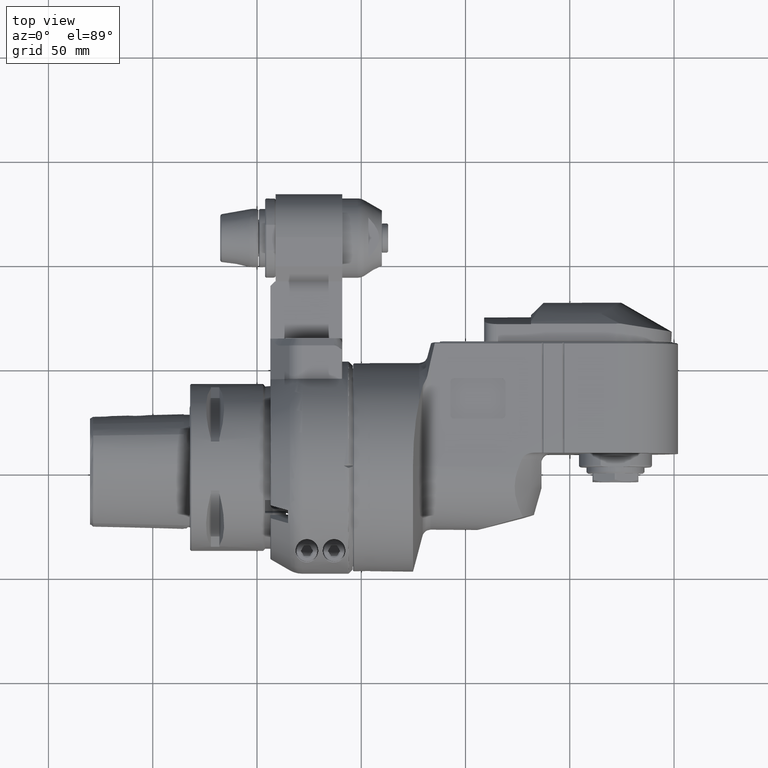
[diagram: clean part render]
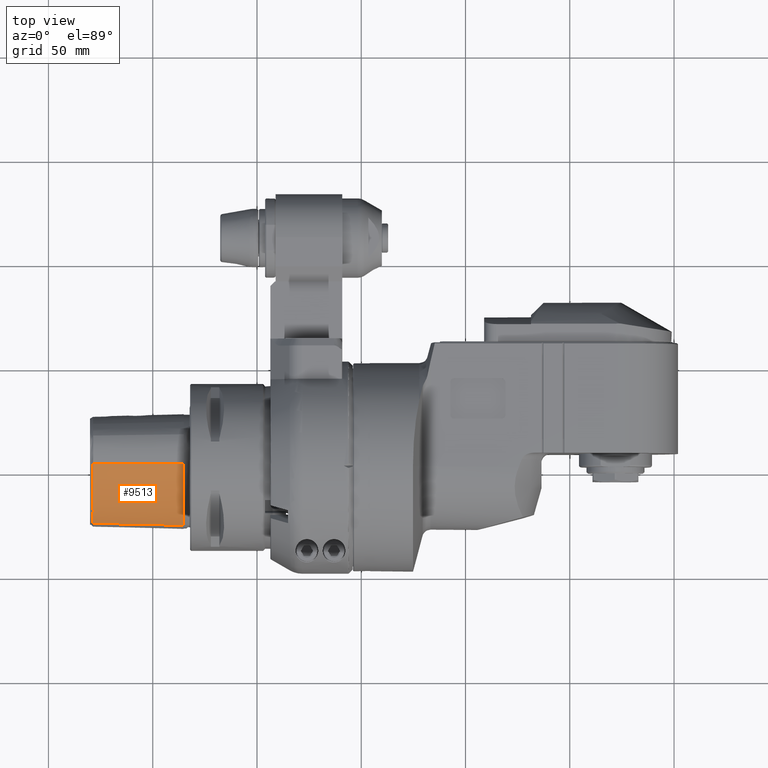
[diagram: same view with one face highlighted and labeled with its STEP entity id]
A machine part, top view. The second image highlights one B-rep face of the part: STEP entity #9513.
In plain terms, the highlighted face is a freeform B-spline surface patch.
Its self-contained STEP definition (entity closure, byte-faithful):
#34=B_SPLINE_SURFACE_WITH_KNOTS('',3,3,((#19590,#19591,#19592,#19593,#19594,
#19595,#19596,#19597,#19598,#19599,#19600),(#19601,#19602,#19603,#19604,
#19605,#19606,#19607,#19608,#19609,#19610,#19611),(#19612,#19613,#19614,
#19615,#19616,#19617,#19618,#19619,#19620,#19621,#19622),(#19623,#19624,
#19625,#19626,#19627,#19628,#19629,#19630,#19631,#19632,#19633),(#19634,
#19635,#19636,#19637,#19638,#19639,#19640,#19641,#19642,#19643,#19644),
(#19645,#19646,#19647,#19648,#19649,#19650,#19651,#19652,#19653,#19654,
#19655),(#19656,#19657,#19658,#19659,#19660,#19661,#19662,#19663,#19664,
#19665,#19666),(#19667,#19668,#19669,#19670,#19671,#19672,#19673,#19674,
#19675,#19676,#19677),(#19678,#19679,#19680,#19681,#19682,#19683,#19684,
#19685,#19686,#19687,#19688),(#19689,#19690,#19691,#19692,#19693,#19694,
#19695,#19696,#19697,#19698,#19699),(#19700,#19701,#19702,#19703,#19704,
#19705,#19706,#19707,#19708,#19709,#19710)),.UNSPECIFIED.,.F.,.F.,.F.,(4,
1,1,1,1,1,1,1,4),(4,1,1,1,1,1,1,1,4),(-0.01169880559212,0.125,0.25,0.375,
0.5,0.625,0.75,0.875,1.011595711378),(-0.01002806217666,0.0625,0.125,0.25,
0.5,0.75,0.875,0.9375,1.012849313526),.UNSPECIFIED.);
#174=B_SPLINE_CURVE_WITH_KNOTS('',3,(#18220,#18221,#18222,#18223,#18224,
#18225,#18226,#18227,#18228,#18229,#18230,#18231,#18232,#18233,#18234,#18235,
#18236,#18237,#18238,#18239,#18240,#18241,#18242,#18243,#18244,#18245,#18246,
#18247,#18248,#18249,#18250,#18251,#18252,#18253,#18254,#18255,#18256,#18257,
#18258,#18259,#18260,#18261,#18262,#18263,#18264,#18265,#18266,#18267,#18268,
#18269,#18270,#18271,#18272,#18273,#18274,#18275,#18276,#18277,#18278,#18279,
#18280,#18281,#18282,#18283,#18284,#18285,#18286,#18287,#18288,#18289,#18290,
#18291,#18292,#18293,#18294,#18295,#18296,#18297,#18298,#18299,#18300,#18301,
#18302,#18303,#18304,#18305,#18306,#18307,#18308,#18309,#18310,#18311,#18312,
#18313,#18314,#18315,#18316,#18317,#18318,#18319,#18320,#18321,#18322,#18323,
#18324,#18325,#18326,#18327,#18328,#18329,#18330,#18331,#18332,#18333,#18334,
#18335,#18336,#18337,#18338,#18339,#18340,#18341,#18342,#18343,#18344,#18345,
#18346,#18347,#18348,#18349,#18350,#18351,#18352,#18353,#18354,#18355,#18356,
#18357,#18358,#18359,#18360,#18361,#18362,#18363,#18364,#18365,#18366,#18367,
#18368,#18369,#18370,#18371,#18372,#18373,#18374,#18375,#18376,#18377,#18378,
#18379,#18380,#18381,#18382,#18383,#18384,#18385,#18386,#18387,#18388,#18389,
#18390,#18391,#18392,#18393,#18394,#18395,#18396,#18397,#18398,#18399,#18400,
#18401,#18402,#18403,#18404,#18405,#18406,#18407,#18408,#18409,#18410,#18411,
#18412,#18413,#18414,#18415,#18416,#18417,#18418,#18419,#18420,#18421,#18422,
#18423,#18424,#18425,#18426,#18427,#18428,#18429,#18430,#18431,#18432,#18433,
#18434,#18435,#18436,#18437,#18438,#18439,#18440,#18441,#18442,#18443,#18444,
#18445,#18446,#18447,#18448,#18449,#18450,#18451,#18452,#18453,#18454,#18455,
#18456,#18457,#18458,#18459,#18460,#18461,#18462,#18463,#18464,#18465,#18466,
#18467,#18468,#18469,#18470,#18471,#18472),.UNSPECIFIED.,.F.,.F.,(4,3,3,
3,3,3,3,3,3,3,3,3,3,3,3,3,3,3,3,3,3,3,3,3,3,3,3,3,3,3,3,3,3,3,3,3,3,3,3,
3,3,3,3,3,3,3,3,3,3,3,3,3,3,3,3,3,3,3,3,3,3,3,3,3,3,3,3,3,3,3,3,3,3,3,3,
3,3,3,3,3,3,3,3,3,4),(0.,0.0144408060381733,0.02777777777778,0.0477507877700687,
0.05555555555556,0.077640842792341,0.08333333333333,0.10002287098027,0.1111111111111,
0.124293039640173,0.134511926963042,0.1388888888889,0.155336029431985,0.1666666666667,
0.180838488948557,0.1944444444444,0.219291272415295,0.2222222222222,0.235388360028553,
0.248560839224546,0.25,0.263989060371511,0.2777777777778,0.283389073088004,
0.297053300081764,0.3055555555556,0.31984456048116,0.3333333333333,0.347684155058637,
0.3611111111111,0.374101709151367,0.386551396082153,0.3888888888889,0.397199657967372,
0.408644854303561,0.4166666666667,0.427488933618653,0.438594949079317,0.4444444444444,
0.456433920455357,0.468869088568605,0.4722222222222,0.480315228309233,0.490157614154616,
0.5,0.50934506412399,0.518805724245684,0.5277777777778,0.546159635532931,
0.5555555555556,0.560869919214028,0.575235926074502,0.5833333333333,0.598739980576151,
0.6111111111111,0.62749451424234,0.6388888888889,0.655925504090136,0.6666666666667,
0.671233505720559,0.685074412152307,0.6944444444444,0.708827728563799,0.7222222222222,
0.737881460193812,0.75,0.764515835672934,0.7777777777778,0.798274583775499,
0.8055555555556,0.820587460517287,0.8333333333333,0.838157787054226,0.857831425556216,
0.8611111111111,0.875526954039761,0.8888888888889,0.906154799405124,0.9166666666667,
0.936444103339296,0.9444444444444,0.963056145439274,0.9722222222222,0.98822786148394,
1.),.UNSPECIFIED.);
#182=B_SPLINE_CURVE_WITH_KNOTS('',3,(#19389,#19390,#19391,#19392,#19393,
#19394,#19395,#19396,#19397,#19398,#19399,#19400,#19401,#19402,#19403,#19404,
#19405,#19406,#19407,#19408,#19409,#19410,#19411,#19412),.UNSPECIFIED.,
 .F.,.F.,(4,2,2,2,2,2,2,2,2,2,2,4),(3.12012815852846E-6,0.236818849493963,
0.484703164790632,1.01425601501948,1.38642070884011,1.82715244978627,1.94726393507569,
2.16465498743788,2.54482898410662,3.19685746395687,3.37703478856387,3.92666945684222),
 .UNSPECIFIED.);
#194=B_SPLINE_CURVE_WITH_KNOTS('',3,(#19711,#19712,#19713,#19714,#19715,
#19716,#19717,#19718,#19719,#19720,#19721,#19722,#19723,#19724,#19725,#19726,
#19727,#19728,#19729),.UNSPECIFIED.,.F.,.F.,(4,3,3,3,3,3,4),(0.,0.25,0.5,
0.75,0.875,0.9375,0.999998897362736),.UNSPECIFIED.);
#195=B_SPLINE_CURVE_WITH_KNOTS('',3,(#19730,#19731,#19732,#19733,#19734,
#19735,#19736,#19737,#19738,#19739,#19740,#19741,#19742,#19743,#19744,#19745,
#19746,#19747,#19748,#19749,#19750,#19751,#19752,#19753,#19754),
 .UNSPECIFIED.,.F.,.F.,(4,3,3,3,3,3,3,3,4),(0.,0.0625,0.125,0.25,0.5,0.75,
0.875,0.9375,1.),.UNSPECIFIED.);
#2352=FACE_OUTER_BOUND('',#2985,.T.);
#2985=EDGE_LOOP('',(#7959,#7960,#7961,#7962));
#4395=VERTEX_POINT('',#18212);
#4396=VERTEX_POINT('',#18219);
#4404=VERTEX_POINT('',#19387);
#4405=VERTEX_POINT('',#19388);
#5640=EDGE_CURVE('',#4395,#4396,#174,.T.);
#5651=EDGE_CURVE('',#4404,#4405,#182,.T.);
#5663=EDGE_CURVE('',#4395,#4404,#194,.T.);
#5664=EDGE_CURVE('',#4405,#4396,#195,.T.);
#7959=ORIENTED_EDGE('',*,*,#5663,.T.);
#7960=ORIENTED_EDGE('',*,*,#5651,.T.);
#7961=ORIENTED_EDGE('',*,*,#5664,.T.);
#7962=ORIENTED_EDGE('',*,*,#5640,.F.);
#9513=ADVANCED_FACE('',(#2352),#34,.T.);
#18212=CARTESIAN_POINT('',(-207.,1.442435783776,27.15081595652));
#18219=CARTESIAN_POINT('',(-207.,-27.88731086809,6.491330225295));
#18220=CARTESIAN_POINT('Ctrl Pts',(-207.,1.44243578377642,27.1508159565171));
#18221=CARTESIAN_POINT('Ctrl Pts',(-207.,1.31232596074685,27.1317597417232));
#18222=CARTESIAN_POINT('Ctrl Pts',(-206.99999997081,1.18220820942862,27.1118138497834));
#18223=CARTESIAN_POINT('Ctrl Pts',(-206.999999961588,1.05205213041782,27.091005920092));
#18224=CARTESIAN_POINT('Ctrl Pts',(-206.999999953071,0.931844993578209,
27.0717885184096));
#18225=CARTESIAN_POINT('Ctrl Pts',(-206.999999961027,0.811604382144825,
27.0518357060803));
#18226=CARTESIAN_POINT('Ctrl Pts',(-207.,0.691268861610757,27.0311570467657));
#18227=CARTESIAN_POINT('Ctrl Pts',(-207.000000058365,0.511058345986985,
27.0001893670568));
#18228=CARTESIAN_POINT('Ctrl Pts',(-207.000000032332,0.330654368639092,
26.9675949096009));
#18229=CARTESIAN_POINT('Ctrl Pts',(-207.000000014578,0.150448291673767,
26.9335055269208));
#18230=CARTESIAN_POINT('Ctrl Pts',(-207.000000007641,0.080029932858959,
26.9201845644884));
#18231=CARTESIAN_POINT('Ctrl Pts',(-207.000000001508,0.00964122230135192,
26.9066353680624));
#18232=CARTESIAN_POINT('Ctrl Pts',(-207.,-0.0606966233513879,26.892865921172));
#18233=CARTESIAN_POINT('Ctrl Pts',(-206.999999995732,-0.259732849354795,
26.8539022776629));
#18234=CARTESIAN_POINT('Ctrl Pts',(-207.000000015415,-0.458354771750283,
26.8131744785839));
#18235=CARTESIAN_POINT('Ctrl Pts',(-207.000000010607,-0.655983413508422,
26.7708986553393));
#18236=CARTESIAN_POINT('Ctrl Pts',(-207.000000009367,-0.706922265322997,
26.7600020470519));
#18237=CARTESIAN_POINT('Ctrl Pts',(-207.000000006268,-0.757795388193016,
26.7490026713086));
#18238=CARTESIAN_POINT('Ctrl Pts',(-207.,-0.808593401874994,26.7379043799301));
#18239=CARTESIAN_POINT('Ctrl Pts',(-206.999999981625,-0.95752564087136,
26.7053658363095));
#18240=CARTESIAN_POINT('Ctrl Pts',(-207.000000050819,-1.10581663066059,
26.6719771623227));
#18241=CARTESIAN_POINT('Ctrl Pts',(-207.000000071455,-1.25361202770971,
26.63774696714));
#18242=CARTESIAN_POINT('Ctrl Pts',(-207.000000085166,-1.3518047330668,26.6150050175461));
#18243=CARTESIAN_POINT('Ctrl Pts',(-207.000000076823,-1.44977972235291,
26.5918911516095));
#18244=CARTESIAN_POINT('Ctrl Pts',(-207.,-1.54759103252637,26.5684022599089));
#18245=CARTESIAN_POINT('Ctrl Pts',(-206.999999908672,-1.66387113512413,
26.5404781810677));
#18246=CARTESIAN_POINT('Ctrl Pts',(-206.99999987824,-1.77992659071089,26.5120239750093));
#18247=CARTESIAN_POINT('Ctrl Pts',(-206.999999886465,-1.89627107187267,
26.482919754967));
#18248=CARTESIAN_POINT('Ctrl Pts',(-206.999999892842,-1.98646357602771,
26.4603575976487));
#18249=CARTESIAN_POINT('Ctrl Pts',(-206.999999922002,-2.07683067668781,
26.4374041850312));
#18250=CARTESIAN_POINT('Ctrl Pts',(-206.999999955876,-2.1676285840556,26.4139903636366));
#18251=CARTESIAN_POINT('Ctrl Pts',(-206.999999970385,-2.20651921577898,
26.4039617370802));
#18252=CARTESIAN_POINT('Ctrl Pts',(-206.99999998568,-2.24548906102013,26.3938484978124));
#18253=CARTESIAN_POINT('Ctrl Pts',(-207.,-2.28455829951459,26.3836445884064));
#18254=CARTESIAN_POINT('Ctrl Pts',(-207.000000053811,-2.43136726594253,
26.3453017526834));
#18255=CARTESIAN_POINT('Ctrl Pts',(-206.999999919891,-2.57956819806081,
26.3056835221054));
#18256=CARTESIAN_POINT('Ctrl Pts',(-206.999999876152,-2.72961056530397,
26.264610453184));
#18257=CARTESIAN_POINT('Ctrl Pts',(-206.99999984602,-2.83297659592895,26.2363147112679));
#18258=CARTESIAN_POINT('Ctrl Pts',(-206.999999858339,-2.9372174039327,26.2073277704654));
#18259=CARTESIAN_POINT('Ctrl Pts',(-207.,-3.04248983740638,26.1775805409241));
#18260=CARTESIAN_POINT('Ctrl Pts',(-207.000000177183,-3.17415959149546,
26.1403741206933));
#18261=CARTESIAN_POINT('Ctrl Pts',(-207.000000235546,-3.30742597603464,
26.1019801091143));
#18262=CARTESIAN_POINT('Ctrl Pts',(-207.000000216888,-3.44164021108164,
26.0625405741616));
#18263=CARTESIAN_POINT('Ctrl Pts',(-207.000000198975,-3.57049540504607,
26.0246758206619));
#18264=CARTESIAN_POINT('Ctrl Pts',(-207.000000110297,-3.70022379614517,
25.9858474899358));
#18265=CARTESIAN_POINT('Ctrl Pts',(-207.,-3.83022071420184,25.9462146634696));
#18266=CARTESIAN_POINT('Ctrl Pts',(-206.999999798579,-4.06761757035702,
25.8738382675959));
#18267=CARTESIAN_POINT('Ctrl Pts',(-207.000000177245,-4.30594544030915,
25.7987757095801));
#18268=CARTESIAN_POINT('Ctrl Pts',(-207.0000000629,-4.54510907803716,25.7209730847363));
#18269=CARTESIAN_POINT('Ctrl Pts',(-207.000000049412,-4.57332099380519,
25.7117954308108));
#18270=CARTESIAN_POINT('Ctrl Pts',(-207.000000029039,-4.60154459260676,
25.7025796239686));
#18271=CARTESIAN_POINT('Ctrl Pts',(-207.,-4.62977976012256,25.6933255549431));
#18272=CARTESIAN_POINT('Ctrl Pts',(-206.999999869556,-4.75661513124444,
25.651755294077));
#18273=CARTESIAN_POINT('Ctrl Pts',(-206.999999843102,-4.88369437933492,
25.6094121830546));
#18274=CARTESIAN_POINT('Ctrl Pts',(-206.999999862214,-5.01171080576746,
25.566039297454));
#18275=CARTESIAN_POINT('Ctrl Pts',(-206.999999881334,-5.13978889052776,
25.5226455215688));
#18276=CARTESIAN_POINT('Ctrl Pts',(-206.999999945918,-5.2688053146793,25.4782211386172));
#18277=CARTESIAN_POINT('Ctrl Pts',(-206.999999987365,-5.39948285163743,
25.4324653624121));
#18278=CARTESIAN_POINT('Ctrl Pts',(-206.999999991893,-5.41376004142265,
25.4274663096609));
#18279=CARTESIAN_POINT('Ctrl Pts',(-206.999999996137,-5.42805708517252,
25.4224513202025));
#18280=CARTESIAN_POINT('Ctrl Pts',(-207.,-5.44237494412103,25.4174199688456));
#18281=CARTESIAN_POINT('Ctrl Pts',(-207.000000037551,-5.5815486880402,25.368513773594));
#18282=CARTESIAN_POINT('Ctrl Pts',(-207.000000022037,-5.72268185857727,
25.3180673923543));
#18283=CARTESIAN_POINT('Ctrl Pts',(-207.000000005648,-5.8664275096938,25.2657496191445));
#18284=CARTESIAN_POINT('Ctrl Pts',(-206.999999989494,-6.00811452147231,
25.2141811098266));
#18285=CARTESIAN_POINT('Ctrl Pts',(-206.99999997234,-6.15233997503863,25.1607946341049));
#18286=CARTESIAN_POINT('Ctrl Pts',(-207.,-6.29974662883576,25.1052266187522));
#18287=CARTESIAN_POINT('Ctrl Pts',(-207.000000011256,-6.35973351817237,
25.0826133085539));
#18288=CARTESIAN_POINT('Ctrl Pts',(-207.000000021637,-6.42024590757823,
25.0596387378771));
#18289=CARTESIAN_POINT('Ctrl Pts',(-207.000000030318,-6.48133101458571,
25.0362747992007));
#18290=CARTESIAN_POINT('Ctrl Pts',(-207.000000051456,-6.63008111985472,
24.9793805985047));
#18291=CARTESIAN_POINT('Ctrl Pts',(-207.000000062516,-6.78222699468993,
24.9201809329965));
#18292=CARTESIAN_POINT('Ctrl Pts',(-207.000000050904,-6.93843690633031,
24.8582622309199));
#18293=CARTESIAN_POINT('Ctrl Pts',(-207.000000043679,-7.03563498251264,
24.8197347222724));
#18294=CARTESIAN_POINT('Ctrl Pts',(-207.000000027656,-7.13440668356876,
24.7801535180497));
#18295=CARTESIAN_POINT('Ctrl Pts',(-207.,-7.23491367987952,24.7394087707546));
#18296=CARTESIAN_POINT('Ctrl Pts',(-206.999999953521,-7.40382708994549,
24.6709326003333));
#18297=CARTESIAN_POINT('Ctrl Pts',(-206.999999870147,-7.57763700236869,
24.5991743825593));
#18298=CARTESIAN_POINT('Ctrl Pts',(-206.999999842622,-7.75680504803648,
24.5236918112675));
#18299=CARTESIAN_POINT('Ctrl Pts',(-206.99999981664,-7.92593908381888,24.4524365164619));
#18300=CARTESIAN_POINT('Ctrl Pts',(-206.999999840289,-8.09984827526845,
24.3778621655837));
#18301=CARTESIAN_POINT('Ctrl Pts',(-207.,-8.27890452147979,24.2995573102945));
#18302=CARTESIAN_POINT('Ctrl Pts',(-207.000000169918,-8.46940400548433,
24.216248099679));
#18303=CARTESIAN_POINT('Ctrl Pts',(-207.00000037475,-8.66572192432255,24.1287183360793));
#18304=CARTESIAN_POINT('Ctrl Pts',(-207.000000422137,-8.86787997630498,
24.0366094986343));
#18305=CARTESIAN_POINT('Ctrl Pts',(-207.000000466473,-9.05702365961247,
23.9504303699343));
#18306=CARTESIAN_POINT('Ctrl Pts',(-207.000000372987,-9.25127974878145,
23.8602425869304));
#18307=CARTESIAN_POINT('Ctrl Pts',(-207.,-9.45062839599227,23.7657352703046));
#18308=CARTESIAN_POINT('Ctrl Pts',(-206.999999639134,-9.64349848029643,
23.6742993143549));
#18309=CARTESIAN_POINT('Ctrl Pts',(-206.999999216362,-9.84113479355126,
23.5788218474992));
#18310=CARTESIAN_POINT('Ctrl Pts',(-206.999999052471,-10.0437043209538,
23.4788918263243));
#18311=CARTESIAN_POINT('Ctrl Pts',(-206.999998895403,-10.2378391244525,
23.3831227574364));
#18312=CARTESIAN_POINT('Ctrl Pts',(-206.999998975989,-10.4365051733918,
23.2832641132417));
#18313=CARTESIAN_POINT('Ctrl Pts',(-206.99999959331,-10.6398111514066,23.1789244559675));
#18314=CARTESIAN_POINT('Ctrl Pts',(-206.999999709215,-10.6779828953083,
23.1593341482198));
#18315=CARTESIAN_POINT('Ctrl Pts',(-206.999999844094,-10.7163180855074,
23.1395857908468));
#18316=CARTESIAN_POINT('Ctrl Pts',(-207.,-10.7548172680531,23.1196766740369));
#18317=CARTESIAN_POINT('Ctrl Pts',(-207.000000554312,-10.8916980383058,
23.0488913985119));
#18318=CARTESIAN_POINT('Ctrl Pts',(-207.000000807117,-11.0306341491617,
22.9760833602979));
#18319=CARTESIAN_POINT('Ctrl Pts',(-207.000000878638,-11.1715148780742,
22.9011980777768));
#18320=CARTESIAN_POINT('Ctrl Pts',(-207.000000977134,-11.3655291247901,
22.7980696244348));
#18321=CARTESIAN_POINT('Ctrl Pts',(-207.000000731267,-11.563233307553,22.690999133608));
#18322=CARTESIAN_POINT('Ctrl Pts',(-207.000000466725,-11.7642826320581,
22.5799710746494));
#18323=CARTESIAN_POINT('Ctrl Pts',(-207.00000028131,-11.9051958946655,22.5021527279958));
#18324=CARTESIAN_POINT('Ctrl Pts',(-207.000000087004,-12.0477516133471,
22.4223908827477));
#18325=CARTESIAN_POINT('Ctrl Pts',(-207.,-12.1918190901198,22.3406897123314));
#18326=CARTESIAN_POINT('Ctrl Pts',(-206.999999882623,-12.386181239488,22.2304662570191));
#18327=CARTESIAN_POINT('Ctrl Pts',(-206.999999921605,-12.5833039162836,
22.1167057076785));
#18328=CARTESIAN_POINT('Ctrl Pts',(-206.999999986079,-12.7825630233057,
21.9996083447305));
#18329=CARTESIAN_POINT('Ctrl Pts',(-207.000000052243,-12.9870464954923,
21.8794408115254));
#18330=CARTESIAN_POINT('Ctrl Pts',(-207.000000145379,-13.1937795739314,
21.7557591189198));
#18331=CARTESIAN_POINT('Ctrl Pts',(-207.000000130999,-13.4020629807558,
21.6288292620173));
#18332=CARTESIAN_POINT('Ctrl Pts',(-207.000000123425,-13.5117650451153,
21.5619757975798));
#18333=CARTESIAN_POINT('Ctrl Pts',(-207.000000086128,-13.6218968032518,
21.494222091006));
#18334=CARTESIAN_POINT('Ctrl Pts',(-207.,-13.732353960873,21.425612357907));
#18335=CARTESIAN_POINT('Ctrl Pts',(-206.999999823467,-13.958753566118,21.2849857400933));
#18336=CARTESIAN_POINT('Ctrl Pts',(-206.999999585276,-14.1865281612634,
21.1407563460542));
#18337=CARTESIAN_POINT('Ctrl Pts',(-206.999999462766,-14.4149682975843,
20.9932148800072));
#18338=CARTESIAN_POINT('Ctrl Pts',(-206.999999335703,-14.6519003783832,
20.84018876508));
#18339=CARTESIAN_POINT('Ctrl Pts',(-206.99999933324,-14.8895479832334,20.6835997349715));
#18340=CARTESIAN_POINT('Ctrl Pts',(-206.999999659856,-15.1270955147965,
20.5238227818799));
#18341=CARTESIAN_POINT('Ctrl Pts',(-206.999999747928,-15.1911500265779,
20.480739047619));
#18342=CARTESIAN_POINT('Ctrl Pts',(-206.999999859956,-15.2551971523813,
20.437423792733));
#18343=CARTESIAN_POINT('Ctrl Pts',(-207.,-15.31922068506,20.3938849655824));
#18344=CARTESIAN_POINT('Ctrl Pts',(-207.000000338007,-15.4737456438629,
20.2888011754463));
#18345=CARTESIAN_POINT('Ctrl Pts',(-207.000000451312,-15.6281923430042,
20.182372721187));
#18346=CARTESIAN_POINT('Ctrl Pts',(-207.000000453196,-15.7820722881015,
20.0748995631491));
#18347=CARTESIAN_POINT('Ctrl Pts',(-207.000000455488,-15.9692148377583,
19.9441950661978));
#18348=CARTESIAN_POINT('Ctrl Pts',(-207.00000029362,-16.155517133822,19.8119451821615));
#18349=CARTESIAN_POINT('Ctrl Pts',(-207.00000015776,-16.3403101226649,19.6786070364184));
#18350=CARTESIAN_POINT('Ctrl Pts',(-207.000000021899,-16.5251031115077,
19.5452688906753));
#18351=CARTESIAN_POINT('Ctrl Pts',(-206.999999912344,-16.7083867204022,
19.4108425900418));
#18352=CARTESIAN_POINT('Ctrl Pts',(-207.,-16.8895370840713,19.2758114398523));
#18353=CARTESIAN_POINT('Ctrl Pts',(-207.000000083227,-17.0615341781871,
19.1476032211257));
#18354=CARTESIAN_POINT('Ctrl Pts',(-207.000000281757,-17.231587725799,19.0188645058368));
#18355=CARTESIAN_POINT('Ctrl Pts',(-207.000000459875,-17.3990755475481,
18.8901309711484));
#18356=CARTESIAN_POINT('Ctrl Pts',(-207.000000640195,-17.5686351498223,
18.7598050363241));
#18357=CARTESIAN_POINT('Ctrl Pts',(-207.000000799882,-17.7355651062631,
18.629484527297));
#18358=CARTESIAN_POINT('Ctrl Pts',(-207.000000769618,-17.8992683614307,
18.4997489859033));
#18359=CARTESIAN_POINT('Ctrl Pts',(-207.000000740917,-18.0545169751482,
18.376713784614));
#18360=CARTESIAN_POINT('Ctrl Pts',(-207.000000541283,-18.2068640294276,
18.2542050065149));
#18361=CARTESIAN_POINT('Ctrl Pts',(-207.,-18.3558398364895,18.1327346166268));
#18362=CARTESIAN_POINT('Ctrl Pts',(-206.999998891024,-18.6610600499628,
17.8838672396777));
#18363=CARTESIAN_POINT('Ctrl Pts',(-206.999999178946,-18.9520985282474,
17.6394022346501));
#18364=CARTESIAN_POINT('Ctrl Pts',(-206.999999552515,-19.2294384681106,
17.4002448772063));
#18365=CARTESIAN_POINT('Ctrl Pts',(-206.999999743466,-19.3712012827705,
17.2779991589928));
#18366=CARTESIAN_POINT('Ctrl Pts',(-206.999999954843,-19.5093853757935,
17.1571394273772));
#18367=CARTESIAN_POINT('Ctrl Pts',(-207.,-19.6440571760725,17.0377817151861));
#18368=CARTESIAN_POINT('Ctrl Pts',(-207.000000025541,-19.7202279948418,
16.9702725956437));
#18369=CARTESIAN_POINT('Ctrl Pts',(-207.000000040048,-19.7952744732661,
16.9032446840513));
#18370=CARTESIAN_POINT('Ctrl Pts',(-207.000000047131,-19.869229952833,16.836699176276));
#18371=CARTESIAN_POINT('Ctrl Pts',(-207.00000006628,-20.0691494530996,16.656810617141));
#18372=CARTESIAN_POINT('Ctrl Pts',(-207.000000031418,-20.2610994049474,
16.4804496927606));
#18373=CARTESIAN_POINT('Ctrl Pts',(-207.000000010456,-20.4457107453974,
16.3076130260372));
#18374=CARTESIAN_POINT('Ctrl Pts',(-206.999999998642,-20.5497670237171,
16.210193548704));
#18375=CARTESIAN_POINT('Ctrl Pts',(-206.999999991168,-20.651491067033,16.1138931007614));
#18376=CARTESIAN_POINT('Ctrl Pts',(-207.,-20.7509902476288,16.0187064930562));
#18377=CARTESIAN_POINT('Ctrl Pts',(-207.000000016804,-20.9403037806398,
15.8375983382744));
#18378=CARTESIAN_POINT('Ctrl Pts',(-207.000000001618,-21.1215654684368,
15.6605242165428));
#18379=CARTESIAN_POINT('Ctrl Pts',(-206.999999992126,-21.295405693352,15.4874916692313));
#18380=CARTESIAN_POINT('Ctrl Pts',(-206.999999984504,-21.4349947993237,
15.3485511070282));
#18381=CARTESIAN_POINT('Ctrl Pts',(-206.999999980423,-21.5697979519487,
15.2122156751693));
#18382=CARTESIAN_POINT('Ctrl Pts',(-207.,-21.7001224118322,15.0784743435175));
#18383=CARTESIAN_POINT('Ctrl Pts',(-207.000000025926,-21.872714412062,14.9013572930127));
#18384=CARTESIAN_POINT('Ctrl Pts',(-207.000000029666,-22.0374527309551,
14.7287907118751));
#18385=CARTESIAN_POINT('Ctrl Pts',(-207.000000023027,-22.1949556418522,
14.5607743157981));
#18386=CARTESIAN_POINT('Ctrl Pts',(-207.000000018409,-22.3044962031331,
14.4439218066869));
#18387=CARTESIAN_POINT('Ctrl Pts',(-207.00000000881,-22.4105361094161,14.329269495492));
#18388=CARTESIAN_POINT('Ctrl Pts',(-207.,-22.5132713368042,14.2168086480523));
#18389=CARTESIAN_POINT('Ctrl Pts',(-206.999999986827,-22.6668787607228,
14.048659693637));
#18390=CARTESIAN_POINT('Ctrl Pts',(-206.999999940653,-22.8131000830974,
13.8854113987139));
#18391=CARTESIAN_POINT('Ctrl Pts',(-206.999999936262,-22.9525378958531,
13.727023804329));
#18392=CARTESIAN_POINT('Ctrl Pts',(-206.999999933494,-23.0404499721922,
13.6271643615169));
#18393=CARTESIAN_POINT('Ctrl Pts',(-206.999999947555,-23.1256647033161,
13.5292364337943));
#18394=CARTESIAN_POINT('Ctrl Pts',(-207.,-23.2083241551263,13.4332243508778));
#18395=CARTESIAN_POINT('Ctrl Pts',(-207.000000022298,-23.2434686201696,
13.3924027240959));
#18396=CARTESIAN_POINT('Ctrl Pts',(-207.000000041104,-23.2781498090828,
13.3519288770914));
#18397=CARTESIAN_POINT('Ctrl Pts',(-207.000000056058,-23.3123848268519,
13.3117936752916));
#18398=CARTESIAN_POINT('Ctrl Pts',(-207.000000101378,-23.416142299371,13.1901542730311));
#18399=CARTESIAN_POINT('Ctrl Pts',(-207.000000109694,-23.515803293855,13.0716296080607));
#18400=CARTESIAN_POINT('Ctrl Pts',(-207.000000085487,-23.6118009198616,
12.9560583205747));
#18401=CARTESIAN_POINT('Ctrl Pts',(-207.000000069099,-23.6767894999146,
12.8778187413157));
#18402=CARTESIAN_POINT('Ctrl Pts',(-207.000000038259,-23.740098622382,12.8009315499002));
#18403=CARTESIAN_POINT('Ctrl Pts',(-207.,-23.8018562156318,12.7253349831512));
#18404=CARTESIAN_POINT('Ctrl Pts',(-206.999999941272,-23.8966559967374,
12.6092919574595));
#18405=CARTESIAN_POINT('Ctrl Pts',(-206.999999915148,-23.9878010783376,
12.4962933804489));
#18406=CARTESIAN_POINT('Ctrl Pts',(-206.999999913834,-24.0759096170218,
12.3858531122605));
#18407=CARTESIAN_POINT('Ctrl Pts',(-206.99999991261,-24.1579610631908,12.2830051493335));
#18408=CARTESIAN_POINT('Ctrl Pts',(-206.999999933345,-24.2373786061174,
12.1823748311305));
#18409=CARTESIAN_POINT('Ctrl Pts',(-207.,-24.3146277926172,12.0835470595536));
#18410=CARTESIAN_POINT('Ctrl Pts',(-207.000000077925,-24.4049382907489,
11.9680094638225));
#18411=CARTESIAN_POINT('Ctrl Pts',(-207.000000096719,-24.492283749088,11.8549378764486));
#18412=CARTESIAN_POINT('Ctrl Pts',(-207.000000078187,-24.5772903199237,
11.7437329164348));
#18413=CARTESIAN_POINT('Ctrl Pts',(-207.000000063844,-24.6430761208883,
11.6576724237712));
#18414=CARTESIAN_POINT('Ctrl Pts',(-207.000000028084,-24.7074601042125,
11.5727292861713));
#18415=CARTESIAN_POINT('Ctrl Pts',(-207.,-24.7707115653479,11.4886214441959));
#18416=CARTESIAN_POINT('Ctrl Pts',(-206.99999996636,-24.8464754635237,11.3878753450416));
#18417=CARTESIAN_POINT('Ctrl Pts',(-206.999999943133,-24.9206124771269,
11.2883321971063));
#18418=CARTESIAN_POINT('Ctrl Pts',(-206.999999936545,-24.9936762076348,
11.1893354761035));
#18419=CARTESIAN_POINT('Ctrl Pts',(-206.999999930527,-25.0604286141647,
11.0988901988152));
#18420=CARTESIAN_POINT('Ctrl Pts',(-206.999999938843,-25.1262846547101,
11.0089006696891));
#18421=CARTESIAN_POINT('Ctrl Pts',(-207.,-25.191629696727,10.9188758724672));
#18422=CARTESIAN_POINT('Ctrl Pts',(-207.00000009452,-25.2926227970242,10.7797393275291));
#18423=CARTESIAN_POINT('Ctrl Pts',(-206.999999919536,-25.3924018616887,
10.6405041518944));
#18424=CARTESIAN_POINT('Ctrl Pts',(-206.99999991639,-25.4910783143415,10.5010855818834));
#18425=CARTESIAN_POINT('Ctrl Pts',(-206.999999915272,-25.5261306277218,
10.4515606620502));
#18426=CARTESIAN_POINT('Ctrl Pts',(-206.999999936171,-25.5610434499428,
10.4020128960555));
#18427=CARTESIAN_POINT('Ctrl Pts',(-207.,-25.5958205583783,10.3524395567561));
#18428=CARTESIAN_POINT('Ctrl Pts',(-207.000000131778,-25.6676195166264,
10.2500930915468));
#18429=CARTESIAN_POINT('Ctrl Pts',(-207.000000273882,-25.7388460384584,
10.1476253894815));
#18430=CARTESIAN_POINT('Ctrl Pts',(-207.000000297831,-25.809071818626,10.0456897878783));
#18431=CARTESIAN_POINT('Ctrl Pts',(-207.000000318138,-25.8686177553986,
9.95925641720636));
#18432=CARTESIAN_POINT('Ctrl Pts',(-207.000000252878,-25.9274448633403,
9.87320553996994));
#18433=CARTESIAN_POINT('Ctrl Pts',(-207.,-25.9853177333562,9.78792096302552));
#18434=CARTESIAN_POINT('Ctrl Pts',(-206.999999904283,-26.007223254235,9.75563980813589));
#18435=CARTESIAN_POINT('Ctrl Pts',(-206.999999839829,-26.0289922282898,
9.7234684405902));
#18436=CARTESIAN_POINT('Ctrl Pts',(-206.999999798873,-26.0506285935723,
9.69140350934707));
#18437=CARTESIAN_POINT('Ctrl Pts',(-206.999999631855,-26.1388595216082,
9.56064593504757));
#18438=CARTESIAN_POINT('Ctrl Pts',(-206.999999852462,-26.224888520603,9.43165586766301));
#18439=CARTESIAN_POINT('Ctrl Pts',(-206.999999958479,-26.3089036841511,
9.30398990494044));
#18440=CARTESIAN_POINT('Ctrl Pts',(-206.999999976153,-26.3229093963254,
9.28270740481982));
#18441=CARTESIAN_POINT('Ctrl Pts',(-206.999999990732,-26.33685904728,9.2614617697762));
#18442=CARTESIAN_POINT('Ctrl Pts',(-207.,-26.3507533909365,9.24025102565381));
#18443=CARTESIAN_POINT('Ctrl Pts',(-207.000000040736,-26.4118259152374,
9.14701929640674));
#18444=CARTESIAN_POINT('Ctrl Pts',(-207.000000036507,-26.4718263244014,
9.0544704794082));
#18445=CARTESIAN_POINT('Ctrl Pts',(-207.000000020023,-26.5310062358549,
8.96212968414345));
#18446=CARTESIAN_POINT('Ctrl Pts',(-207.000000004745,-26.5858596443675,
8.87653970537142));
#18447=CARTESIAN_POINT('Ctrl Pts',(-206.999999979205,-26.6400079236993,
8.79112874538106));
#18448=CARTESIAN_POINT('Ctrl Pts',(-207.,-26.6936161012968,8.70553738096042));
#18449=CARTESIAN_POINT('Ctrl Pts',(-207.000000026871,-26.762887057022,8.59493866485131));
#18450=CARTESIAN_POINT('Ctrl Pts',(-207.000000015066,-26.8312613768112,
8.48402987513415));
#18451=CARTESIAN_POINT('Ctrl Pts',(-207.000000003376,-26.8987141972399,
8.3725692429531));
#18452=CARTESIAN_POINT('Ctrl Pts',(-206.999999996259,-26.9397809625344,
8.30470955091558));
#18453=CARTESIAN_POINT('Ctrl Pts',(-206.999999989883,-26.980505267152,8.23664561355496));
#18454=CARTESIAN_POINT('Ctrl Pts',(-207.,-27.0208723594959,8.168325623888));
#18455=CARTESIAN_POINT('Ctrl Pts',(-207.000000019035,-27.0968205799808,
8.03978573316375));
#18456=CARTESIAN_POINT('Ctrl Pts',(-207.000000017937,-27.1715096524152,
7.91033431919258));
#18457=CARTESIAN_POINT('Ctrl Pts',(-207.000000009774,-27.2446128754707,
7.77993608477072));
#18458=CARTESIAN_POINT('Ctrl Pts',(-207.000000006473,-27.2741844893258,
7.72718757280993));
#18459=CARTESIAN_POINT('Ctrl Pts',(-207.000000002395,-27.3034960220167,
7.6742841516539));
#18460=CARTESIAN_POINT('Ctrl Pts',(-207.,-27.332523395384,7.62122356671765));
#18461=CARTESIAN_POINT('Ctrl Pts',(-206.99999999443,-27.4000516153289,7.497785362212));
#18462=CARTESIAN_POINT('Ctrl Pts',(-207.000000034837,-27.4660450555926,
7.37349721345077));
#18463=CARTESIAN_POINT('Ctrl Pts',(-207.000000034934,-27.5301794314793,
7.24830843975959));
#18464=CARTESIAN_POINT('Ctrl Pts',(-207.000000034981,-27.5617649708109,
7.18665421952848));
#18465=CARTESIAN_POINT('Ctrl Pts',(-207.000000025754,-27.5928988325782,
7.12478158982146));
#18466=CARTESIAN_POINT('Ctrl Pts',(-207.,-27.6235375865335,7.06268465399808));
#18467=CARTESIAN_POINT('Ctrl Pts',(-206.999999955028,-27.6770384304443,
6.95425209581792));
#18468=CARTESIAN_POINT('Ctrl Pts',(-206.999999967814,-27.7290312908137,
6.84513829513684));
#18469=CARTESIAN_POINT('Ctrl Pts',(-206.999999980579,-27.7792996050812,
6.73521941569089));
#18470=CARTESIAN_POINT('Ctrl Pts',(-206.999999989967,-27.8162719214535,
6.65437414277131));
#18471=CARTESIAN_POINT('Ctrl Pts',(-207.,-27.852310392751,6.57309349549804));
#18472=CARTESIAN_POINT('Ctrl Pts',(-207.,-27.8873108680922,6.49133022529593));
#19387=CARTESIAN_POINT('',(-250.500425824496,1.60264057726227,26.069723203212));
#19388=CARTESIAN_POINT('',(-250.500627855548,-26.8948650074138,6.03426502020777));
#19389=CARTESIAN_POINT('Ctrl Pts',(-250.500425824479,1.60264057726215,26.0697232032112));
#19390=CARTESIAN_POINT('Ctrl Pts',(-250.51122024394,0.822022283169935,25.9528966393776));
#19391=CARTESIAN_POINT('Ctrl Pts',(-250.522692666182,0.0454357326997607,
25.8089817226958));
#19392=CARTESIAN_POINT('Ctrl Pts',(-250.536665843708,-1.53470540739067,
25.4625434980284));
#19393=CARTESIAN_POINT('Ctrl Pts',(-250.538347530193,-2.33544991161212,
25.2581757984364));
#19394=CARTESIAN_POINT('Ctrl Pts',(-250.525561621461,-4.82745325167087,
24.5356720758838));
#19395=CARTESIAN_POINT('Ctrl Pts',(-250.494329766776,-6.47930515117755,
23.9314746629868));
#19396=CARTESIAN_POINT('Ctrl Pts',(-250.494046612715,-9.27101594081389,
22.7014384581013));
#19397=CARTESIAN_POINT('Ctrl Pts',(-250.50079174984,-10.402143680377,22.1412840183789));
#19398=CARTESIAN_POINT('Ctrl Pts',(-250.504077046295,-12.8259400472238,
20.802170193431));
#19399=CARTESIAN_POINT('Ctrl Pts',(-250.498297477264,-14.1150179769165,
19.9991394565421));
#19400=CARTESIAN_POINT('Ctrl Pts',(-250.501871113888,-15.697361764009,18.8859806426664));
#19401=CARTESIAN_POINT('Ctrl Pts',(-250.503067013283,-16.0330655212524,
18.6422145996122));
#19402=CARTESIAN_POINT('Ctrl Pts',(-250.506182556227,-16.964922226708,17.9443337468796));
#19403=CARTESIAN_POINT('Ctrl Pts',(-250.50792868886,-17.5555469277338,17.4769553214816));
#19404=CARTESIAN_POINT('Ctrl Pts',(-250.503187365555,-19.1362436918422,
16.154510598137));
#19405=CARTESIAN_POINT('Ctrl Pts',(-250.478284704179,-20.0568240686754,
15.3050281315359));
#19406=CARTESIAN_POINT('Ctrl Pts',(-250.474985801979,-22.4416635554652,
12.8724379194678));
#19407=CARTESIAN_POINT('Ctrl Pts',(-250.596618513314,-23.5005327886135,
11.5479803687417));
#19408=CARTESIAN_POINT('Ctrl Pts',(-250.623878732224,-24.648532509689,9.93237650552132));
#19409=CARTESIAN_POINT('Ctrl Pts',(-250.623929160811,-24.8879901066639,
9.58046040336022));
#19410=CARTESIAN_POINT('Ctrl Pts',(-250.600510490882,-25.8334892391074,
8.12387742311678));
#19411=CARTESIAN_POINT('Ctrl Pts',(-250.528480186466,-26.4170185319504,
7.06918188007052));
#19412=CARTESIAN_POINT('Ctrl Pts',(-250.500784170576,-26.8948630327254,
6.03425992522716));
#19590=CARTESIAN_POINT('Ctrl Pts',(-206.5639680376,-28.01024467712,6.221011919533));
#19591=CARTESIAN_POINT('Ctrl Pts',(-207.6156247785,-27.98668590511,6.207817125702));
#19592=CARTESIAN_POINT('Ctrl Pts',(-209.5735337084,-27.94336469404,6.1853440392));
#19593=CARTESIAN_POINT('Ctrl Pts',(-213.3439518449,-27.85985349519,6.14057667816));
#19594=CARTESIAN_POINT('Ctrl Pts',(-219.6877357959,-27.72004045507,6.066150166275));
#19595=CARTESIAN_POINT('Ctrl Pts',(-228.7503154732,-27.52137369762,5.960003971324));
#19596=CARTESIAN_POINT('Ctrl Pts',(-237.8129051928,-27.32306239447,5.85404426635));
#19597=CARTESIAN_POINT('Ctrl Pts',(-244.1566996679,-27.18363114157,5.779791280088));
#19598=CARTESIAN_POINT('Ctrl Pts',(-247.9680323846,-27.09944709768,5.734632412918));
#19599=CARTESIAN_POINT('Ctrl Pts',(-249.9668525237,-27.05533854313,5.711747394154));
#19600=CARTESIAN_POINT('Ctrl Pts',(-251.0594188624,-27.03089921952,5.697964793839));
#19601=CARTESIAN_POINT('Ctrl Pts',(-206.5631978678,-27.59234726342,7.284675882278));
#19602=CARTESIAN_POINT('Ctrl Pts',(-207.6148986643,-27.56693941853,7.280362737595));
#19603=CARTESIAN_POINT('Ctrl Pts',(-209.5728809194,-27.51782362702,7.265083323108));
#19604=CARTESIAN_POINT('Ctrl Pts',(-213.343412901,-27.42373363121,7.24092773334));
#19605=CARTESIAN_POINT('Ctrl Pts',(-219.6873322911,-27.26340928818,7.197350057614));
#19606=CARTESIAN_POINT('Ctrl Pts',(-228.7499896362,-27.03151444096,7.134857057696));
#19607=CARTESIAN_POINT('Ctrl Pts',(-237.8126212742,-26.79871365648,7.071875181593));
#19608=CARTESIAN_POINT('Ctrl Pts',(-244.1565166946,-26.63752092676,7.027897123053));
#19609=CARTESIAN_POINT('Ctrl Pts',(-247.9679451391,-26.54192567933,7.003289790065));
#19610=CARTESIAN_POINT('Ctrl Pts',(-249.9668316306,-26.49155931887,6.987566108893));
#19611=CARTESIAN_POINT('Ctrl Pts',(-251.0594399962,-26.46514184023,6.9833853806));
#19612=CARTESIAN_POINT('Ctrl Pts',(-206.5621149018,-26.29243732069,9.477391648887));
#19613=CARTESIAN_POINT('Ctrl Pts',(-207.6138781973,-26.26537331317,9.477294315215));
#19614=CARTESIAN_POINT('Ctrl Pts',(-209.571964362,-26.21496874705,9.479843602948));
#19615=CARTESIAN_POINT('Ctrl Pts',(-213.3426574048,-26.11522953506,9.481469513539));
#19616=CARTESIAN_POINT('Ctrl Pts',(-219.6867676551,-25.94321986199,9.483269018137));
#19617=CARTESIAN_POINT('Ctrl Pts',(-228.7495322631,-25.68831440164,9.481373945507));
#19618=CARTESIAN_POINT('Ctrl Pts',(-237.8122200337,-25.43072362158,9.478006835673));
#19619=CARTESIAN_POINT('Ctrl Pts',(-244.1562568912,-25.25608122862,9.478563534668));
#19620=CARTESIAN_POINT('Ctrl Pts',(-247.967820372,-25.15376233408,9.479596866802));
#19621=CARTESIAN_POINT('Ctrl Pts',(-249.9668007126,-25.10164117305,9.482006981133));
#19622=CARTESIAN_POINT('Ctrl Pts',(-251.0594686131,-25.07319490111,9.481700336895));
#19623=CARTESIAN_POINT('Ctrl Pts',(-206.5613990068,-23.43610886971,13.349707944));
#19624=CARTESIAN_POINT('Ctrl Pts',(-207.6132050204,-23.41131556019,13.34560906139));
#19625=CARTESIAN_POINT('Ctrl Pts',(-209.5713620278,-23.3639969628,13.33675751928));
#19626=CARTESIAN_POINT('Ctrl Pts',(-213.3421641833,-23.26991079952,13.31892735396));
#19627=CARTESIAN_POINT('Ctrl Pts',(-219.6864019856,-23.10520507583,13.28580673236));
#19628=CARTESIAN_POINT('Ctrl Pts',(-228.7492330887,-22.85687489171,13.23259154545));
#19629=CARTESIAN_POINT('Ctrl Pts',(-237.8119513887,-22.60466841191,13.17717047698));
#19630=CARTESIAN_POINT('Ctrl Pts',(-244.1560808037,-22.4361467414,13.14216126265));
#19631=CARTESIAN_POINT('Ctrl Pts',(-247.9677348044,-22.33886167344,13.12319564847));
#19632=CARTESIAN_POINT('Ctrl Pts',(-249.9667786887,-22.289575036,13.11380521018));
#19633=CARTESIAN_POINT('Ctrl Pts',(-251.0594870602,-22.26338448581,13.10946231355));
#19634=CARTESIAN_POINT('Ctrl Pts',(-206.5613350868,-19.98574663068,16.8884489369));
#19635=CARTESIAN_POINT('Ctrl Pts',(-207.6131468614,-19.96386397764,16.87872357315));
#19636=CARTESIAN_POINT('Ctrl Pts',(-209.571313176,-19.92215545098,16.86034615402));
#19637=CARTESIAN_POINT('Ctrl Pts',(-213.3421287992,-19.83860297549,16.82327982918));
#19638=CARTESIAN_POINT('Ctrl Pts',(-219.6863801056,-19.69149325219,16.75786153863));
#19639=CARTESIAN_POINT('Ctrl Pts',(-228.7492115248,-19.46785658887,16.65783428321));
#19640=CARTESIAN_POINT('Ctrl Pts',(-237.811923992,-19.24021681037,16.55542219436));
#19641=CARTESIAN_POINT('Ctrl Pts',(-244.1560606226,-19.08916153907,16.48793729193));
#19642=CARTESIAN_POINT('Ctrl Pts',(-247.9677245347,-19.00244818691,16.44942430828));
#19643=CARTESIAN_POINT('Ctrl Pts',(-249.9667761871,-18.95885512238,16.43027071346));
#19644=CARTESIAN_POINT('Ctrl Pts',(-251.0594897248,-18.93566180904,16.42001704145));
#19645=CARTESIAN_POINT('Ctrl Pts',(-206.5617125653,-15.89121354895,20.14054218084));
#19646=CARTESIAN_POINT('Ctrl Pts',(-207.6135046984,-15.87224900487,20.12655267983));
#19647=CARTESIAN_POINT('Ctrl Pts',(-209.5716380863,-15.836053148,20.10001425726));
#19648=CARTESIAN_POINT('Ctrl Pts',(-213.3424017332,-15.76365335294,20.04756585128));
#19649=CARTESIAN_POINT('Ctrl Pts',(-219.6865890299,-15.63626793151,19.95644853049));
#19650=CARTESIAN_POINT('Ctrl Pts',(-228.7493773155,-15.44284215149,19.82031051482));
#19651=CARTESIAN_POINT('Ctrl Pts',(-237.8120612835,-15.24601022941,19.68200809034));
#19652=CARTESIAN_POINT('Ctrl Pts',(-244.1561476747,-15.11526628086,19.58898767303));
#19653=CARTESIAN_POINT('Ctrl Pts',(-247.9677666006,-15.04016136042,19.53499334617));
#19654=CARTESIAN_POINT('Ctrl Pts',(-249.9667878531,-15.00234558904,19.50752176706));
#19655=CARTESIAN_POINT('Ctrl Pts',(-251.0594823446,-14.98225462143,19.49284965773));
#19656=CARTESIAN_POINT('Ctrl Pts',(-206.5623425646,-11.18627929403,23.03573082175));
#19657=CARTESIAN_POINT('Ctrl Pts',(-207.614099818,-11.1777261021,23.01292319614));
#19658=CARTESIAN_POINT('Ctrl Pts',(-209.5721750174,-11.1612425508,22.97012654875));
#19659=CARTESIAN_POINT('Ctrl Pts',(-213.3428477892,-11.12756194684,22.88661723267));
#19660=CARTESIAN_POINT('Ctrl Pts',(-219.6869256393,-11.06701096032,22.74387582412));
#19661=CARTESIAN_POINT('Ctrl Pts',(-228.7496472035,-10.9724805719,22.53527334523));
#19662=CARTESIAN_POINT('Ctrl Pts',(-237.8122919238,-10.87556047391,22.32499294368));
#19663=CARTESIAN_POINT('Ctrl Pts',(-244.1562951087,-10.81265339566,22.180746792));
#19664=CARTESIAN_POINT('Ctrl Pts',(-247.9678367641,-10.77726081601,22.09554320758));
#19665=CARTESIAN_POINT('Ctrl Pts',(-249.9668049445,-10.75982760683,22.05153724406));
#19666=CARTESIAN_POINT('Ctrl Pts',(-251.059465943,-10.75066624541,22.02771877714));
#19667=CARTESIAN_POINT('Ctrl Pts',(-206.5630361416,-6.414124434,25.17916521762));
#19668=CARTESIAN_POINT('Ctrl Pts',(-207.6147536004,-6.416222411249,25.15129759178));
#19669=CARTESIAN_POINT('Ctrl Pts',(-209.5727625957,-6.419649325047,25.09920888369));
#19670=CARTESIAN_POINT('Ctrl Pts',(-213.3433326836,-6.425375627828,24.99818812366));
#19671=CARTESIAN_POINT('Ctrl Pts',(-219.6872886363,-6.432911834066,24.82678362298));
#19672=CARTESIAN_POINT('Ctrl Pts',(-228.749941057,-6.439489557198,24.57890832099));
#19673=CARTESIAN_POINT('Ctrl Pts',(-237.8125490014,-6.444809129346,24.32997432906));
#19674=CARTESIAN_POINT('Ctrl Pts',(-244.1564614109,-6.451105886241,24.15759158017));
#19675=CARTESIAN_POINT('Ctrl Pts',(-247.9679166757,-6.456186432021,24.05494713471));
#19676=CARTESIAN_POINT('Ctrl Pts',(-249.9668248864,-6.459365414975,24.00154976022));
#19677=CARTESIAN_POINT('Ctrl Pts',(-251.0594478779,-6.461408647802,23.97250595633));
#19678=CARTESIAN_POINT('Ctrl Pts',(-206.5636219514,-1.907438161436,26.5747228265));
#19679=CARTESIAN_POINT('Ctrl Pts',(-207.6153038864,-1.914128699609,26.54637146926));
#19680=CARTESIAN_POINT('Ctrl Pts',(-209.5732541046,-1.92713362869,26.4934214923));
#19681=CARTESIAN_POINT('Ctrl Pts',(-213.3437339311,-1.951468512328,26.39121940202));
#19682=CARTESIAN_POINT('Ctrl Pts',(-219.6875851564,-1.992150122994,26.21863784424));
#19683=CARTESIAN_POINT('Ctrl Pts',(-228.7501852728,-2.049220712413,25.9708531091));
#19684=CARTESIAN_POINT('Ctrl Pts',(-237.8127711364,-2.106004641585,25.72264747861));
#19685=CARTESIAN_POINT('Ctrl Pts',(-244.1566081119,-2.146405191029,25.54965255595));
#19686=CARTESIAN_POINT('Ctrl Pts',(-247.9679886353,-2.170844223395,25.44610612085));
#19687=CARTESIAN_POINT('Ctrl Pts',(-249.9668441325,-2.184054732618,25.39194324603));
#19688=CARTESIAN_POINT('Ctrl Pts',(-251.0594334455,-2.19094586025,25.36244438129));
#19689=CARTESIAN_POINT('Ctrl Pts',(-206.5637889819,0.6029456633907,27.04916966038));
#19690=CARTESIAN_POINT('Ctrl Pts',(-207.6154582231,0.6015920676238,27.02234298626));
#19691=CARTESIAN_POINT('Ctrl Pts',(-209.5733876126,0.6005353199537,26.97255512039));
#19692=CARTESIAN_POINT('Ctrl Pts',(-213.3438366494,0.5973482124875,26.87646756154));
#19693=CARTESIAN_POINT('Ctrl Pts',(-219.6876549585,0.5924392347783,26.71471302814));
#19694=CARTESIAN_POINT('Ctrl Pts',(-228.7502472337,0.585165027429,26.48331244337));
#19695=CARTESIAN_POINT('Ctrl Pts',(-237.8128376814,0.5778803639404,26.25182480896));
#19696=CARTESIAN_POINT('Ctrl Pts',(-244.1566540471,0.5729603048436,26.08997691852));
#19697=CARTESIAN_POINT('Ctrl Pts',(-247.9680105071,0.5697319140726,25.99278985964));
#19698=CARTESIAN_POINT('Ctrl Pts',(-249.9668479381,0.5686625234554,25.94193554558));
#19699=CARTESIAN_POINT('Ctrl Pts',(-251.0594255274,0.5671895568094,25.91404382101));
#19700=CARTESIAN_POINT('Ctrl Pts',(-206.5637725893,1.732361484612,27.20284601928));
#19701=CARTESIAN_POINT('Ctrl Pts',(-207.6154404751,1.737901565337,27.17695010343));
#19702=CARTESIAN_POINT('Ctrl Pts',(-209.5733680158,1.74779827287,27.1286922283));
#19703=CARTESIAN_POINT('Ctrl Pts',(-213.3438151578,1.767183268436,27.03581412165));
#19704=CARTESIAN_POINT('Ctrl Pts',(-219.6876339302,1.799666020101,26.87955855074));
#19705=CARTESIAN_POINT('Ctrl Pts',(-228.7502343764,1.846136650388,26.65640764678));
#19706=CARTESIAN_POINT('Ctrl Pts',(-237.8128355668,1.892606095032,26.43328837532));
#19707=CARTESIAN_POINT('Ctrl Pts',(-244.1566551225,1.925087891878,26.27706637185));
#19708=CARTESIAN_POINT('Ctrl Pts',(-247.968011317,1.944682767752,26.18320088321));
#19709=CARTESIAN_POINT('Ctrl Pts',(-249.9668476605,1.954782488505,26.13394421268));
#19710=CARTESIAN_POINT('Ctrl Pts',(-251.0594242271,1.960556578716,26.10704816806));
#19711=CARTESIAN_POINT('Ctrl Pts',(-207.,1.44243578377642,27.1508159565171));
#19712=CARTESIAN_POINT('Ctrl Pts',(-210.6250394404,1.4557830121885,27.0607466649439));
#19713=CARTESIAN_POINT('Ctrl Pts',(-214.250078883141,1.46913265672036,26.9706608843112));
#19714=CARTESIAN_POINT('Ctrl Pts',(-217.875118333679,1.48248350342562,26.8805668808283));
#19715=CARTESIAN_POINT('Ctrl Pts',(-221.500157784217,1.49583435013088,26.7904728773454));
#19716=CARTESIAN_POINT('Ctrl Pts',(-225.125197246678,1.50918639680607,26.7003706505795));
#19717=CARTESIAN_POINT('Ctrl Pts',(-228.75023668492,1.52253844872959,26.6102684706569));
#19718=CARTESIAN_POINT('Ctrl Pts',(-232.375276123163,1.53589050065311,26.5201662907342));
#19719=CARTESIAN_POINT('Ctrl Pts',(-236.000315537192,1.54924255963501,26.4300641579461));
#19720=CARTESIAN_POINT('Ctrl Pts',(-239.625355042957,1.56259335496475,26.3399703272365));
#19721=CARTESIAN_POINT('Ctrl Pts',(-241.43787479584,1.56926875262962,26.2949234118817));
#19722=CARTESIAN_POINT('Ctrl Pts',(-243.250394571647,1.57594383355736,26.2498785719131));
#19723=CARTESIAN_POINT('Ctrl Pts',(-245.062914221143,1.58261852320583,26.204836855946));
#19724=CARTESIAN_POINT('Ctrl Pts',(-245.969174045891,1.58595586803007,26.1823159979625));
#19725=CARTESIAN_POINT('Ctrl Pts',(-246.875433839068,1.58929311537701,26.1597959210347));
#19726=CARTESIAN_POINT('Ctrl Pts',(-247.781693809462,1.59263013881686,26.1372767329755));
#19727=CARTESIAN_POINT('Ctrl Pts',(-248.687937791441,1.59596710338428,26.1147579422042));
#19728=CARTESIAN_POINT('Ctrl Pts',(-249.594181950612,1.59930384344079,26.0922400401714));
#19729=CARTESIAN_POINT('Ctrl Pts',(-250.500425824496,1.60264057858585,26.0697232034084));
#19730=CARTESIAN_POINT('Ctrl Pts',(-250.500471540519,-26.8948669821022,
6.03427011518838));
#19731=CARTESIAN_POINT('Ctrl Pts',(-249.594211703973,-26.9155427895236,
6.04379243927767));
#19732=CARTESIAN_POINT('Ctrl Pts',(-248.687952862159,-26.936217375028,6.05331482685978));
#19733=CARTESIAN_POINT('Ctrl Pts',(-247.78169335875,-26.9568913624839,6.06283650083743));
#19734=CARTESIAN_POINT('Ctrl Pts',(-246.875433855341,-26.9775653499399,
6.07235817481508));
#19735=CARTESIAN_POINT('Ctrl Pts',(-245.969173690389,-26.9982387201901,
6.08187917534604));
#19736=CARTESIAN_POINT('Ctrl Pts',(-245.062913619667,-27.0189114708596,
6.09139993558138));
#19737=CARTESIAN_POINT('Ctrl Pts',(-243.250393478221,-27.0602569721985,
6.11044145605208));
#19738=CARTESIAN_POINT('Ctrl Pts',(-241.437873713613,-27.1016000128678,
6.12948197830247));
#19739=CARTESIAN_POINT('Ctrl Pts',(-239.625353833233,-27.142942158253,6.14852192365348));
#19740=CARTESIAN_POINT('Ctrl Pts',(-236.000314072474,-27.2256264490232,
6.1866018143555));
#19741=CARTESIAN_POINT('Ctrl Pts',(-232.375273848693,-27.3083071093005,
6.22467950184953));
#19742=CARTESIAN_POINT('Ctrl Pts',(-228.7502339283,-27.3909955094315,6.26276057765268));
#19743=CARTESIAN_POINT('Ctrl Pts',(-225.125194007907,-27.4736839095626,
6.30084165345583));
#19744=CARTESIAN_POINT('Ctrl Pts',(-221.5001543909,-27.556380077867,6.3389260554782));
#19745=CARTESIAN_POINT('Ctrl Pts',(-217.875115297272,-27.639095484069,6.37701918979885));
#19746=CARTESIAN_POINT('Ctrl Pts',(-216.062595750457,-27.6804531871699,
6.39606575695917));
#19747=CARTESIAN_POINT('Ctrl Pts',(-214.250076334486,-27.7218156979425,
6.41511451136016));
#19748=CARTESIAN_POINT('Ctrl Pts',(-212.437557103162,-27.7631844507867,
6.43416612555116));
#19749=CARTESIAN_POINT('Ctrl Pts',(-211.5312974875,-27.7838688272088,6.44369193264667));
#19750=CARTESIAN_POINT('Ctrl Pts',(-210.625037918,-27.8045547642002,6.45321845456639));
#19751=CARTESIAN_POINT('Ctrl Pts',(-209.718778399125,-27.8252424407272,
6.4627457762896));
#19752=CARTESIAN_POINT('Ctrl Pts',(-208.81251888025,-27.8459301172543,6.47227309801281));
#19753=CARTESIAN_POINT('Ctrl Pts',(-207.906259412,-27.8666195333114,6.48180121955261));
#19754=CARTESIAN_POINT('Ctrl Pts',(-207.,-27.8873108680922,6.49133022529593));